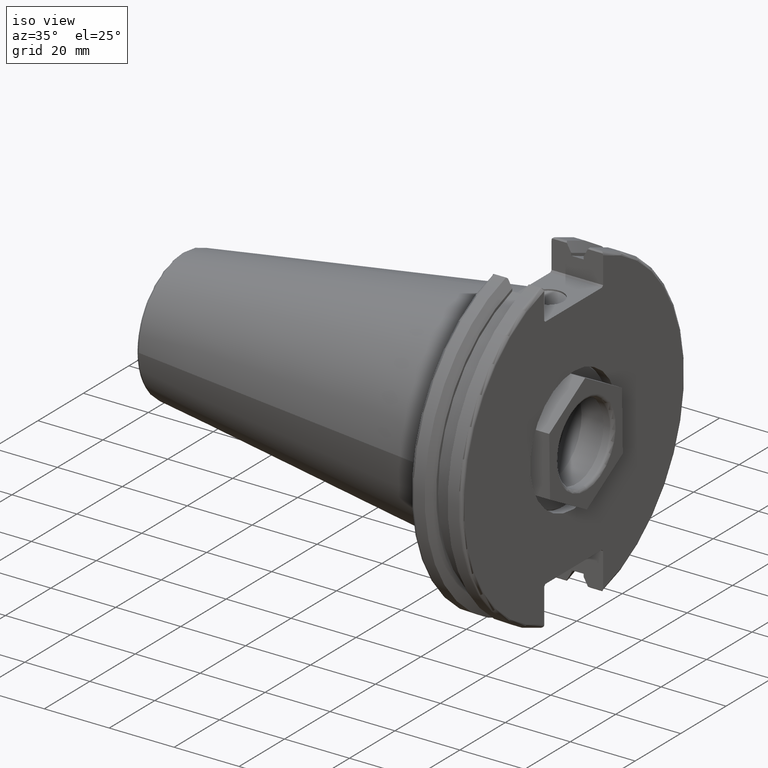
[diagram: clean part render]
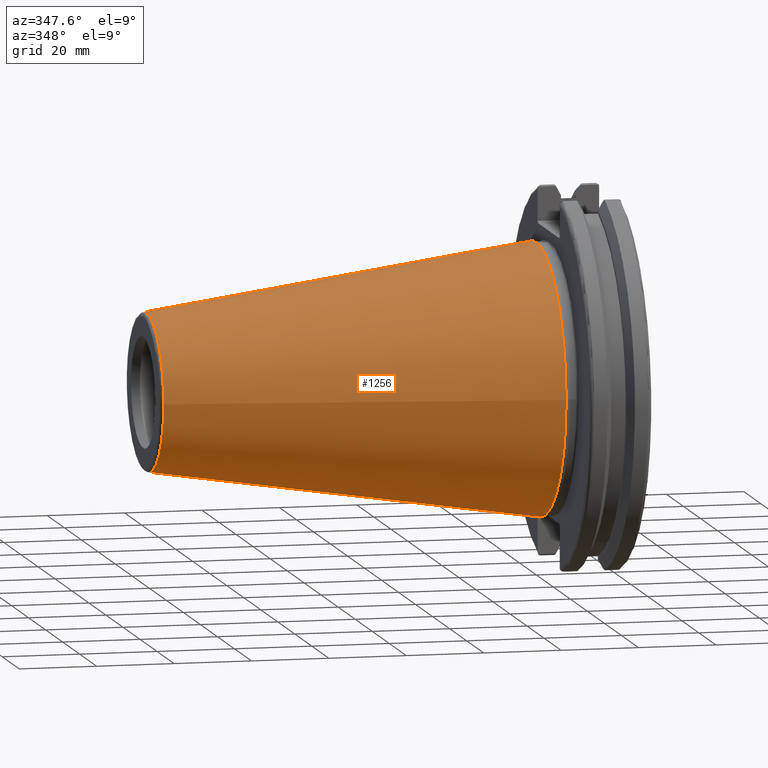
[diagram: tour spotlight — one face highlighted and labeled with its STEP entity id]
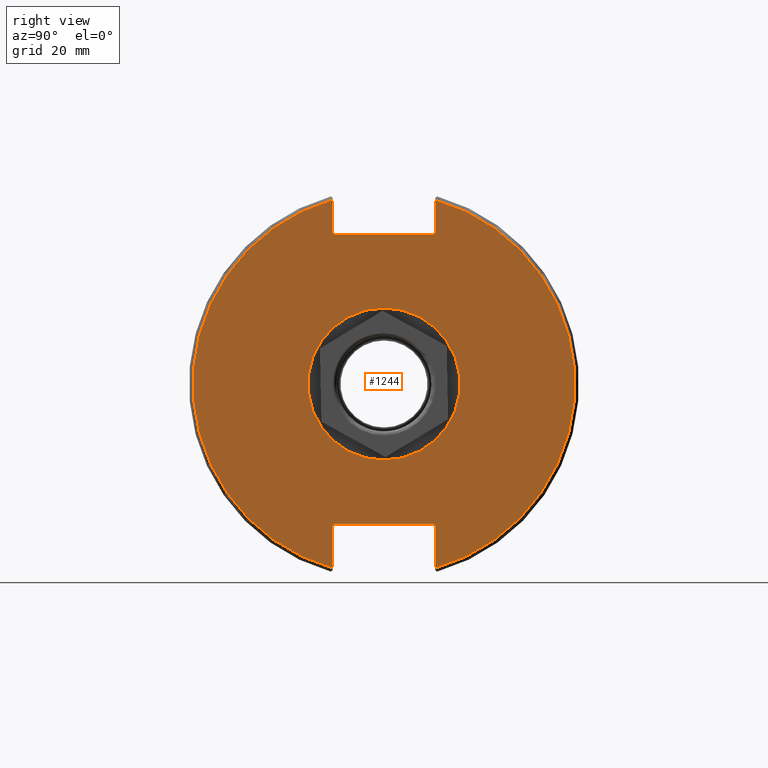
[diagram: tour spotlight — one face highlighted and labeled with its STEP entity id]
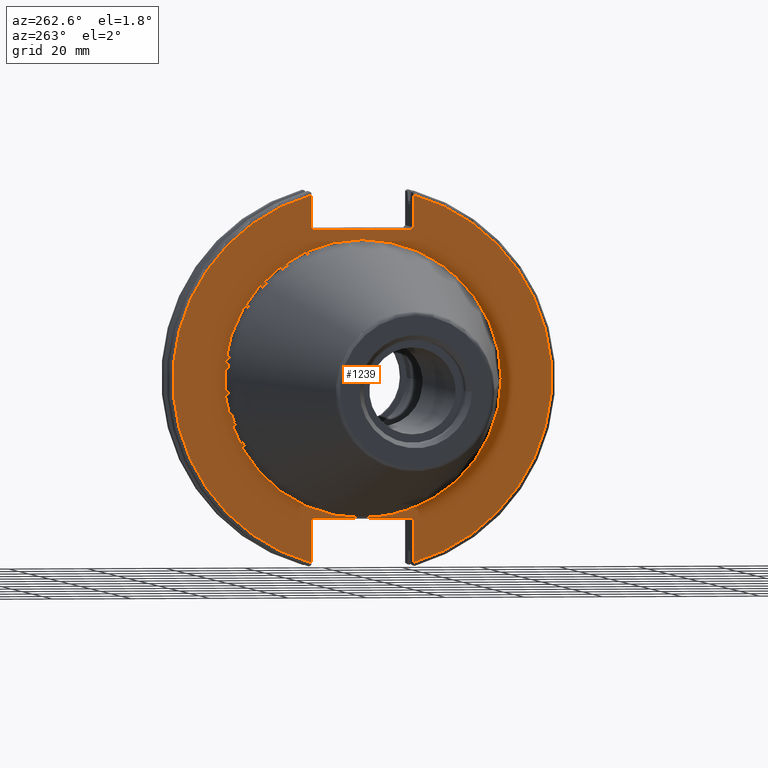
[diagram: tour spotlight — one face highlighted and labeled with its STEP entity id]
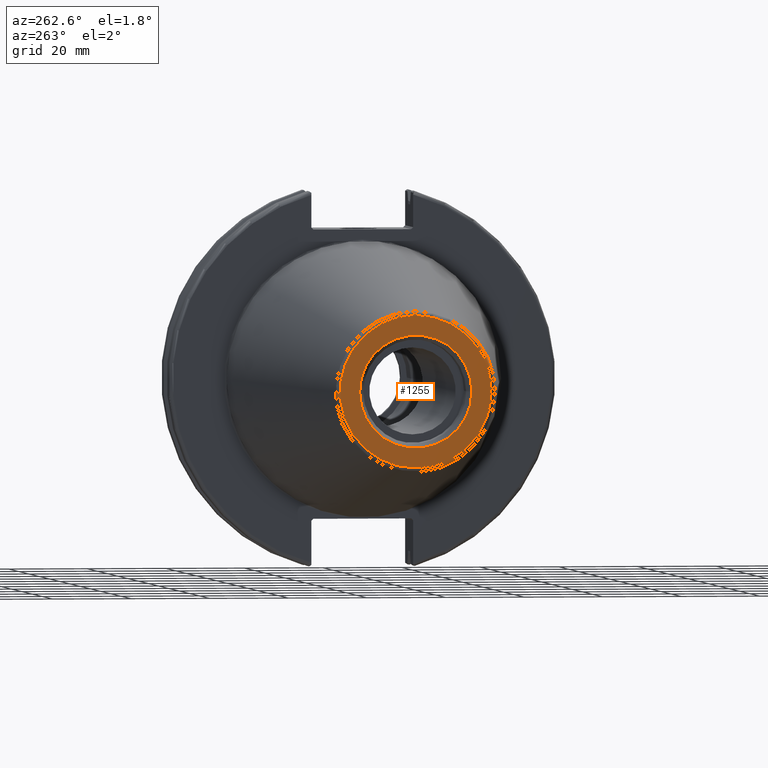
[diagram: tour spotlight — one face highlighted and labeled with its STEP entity id]
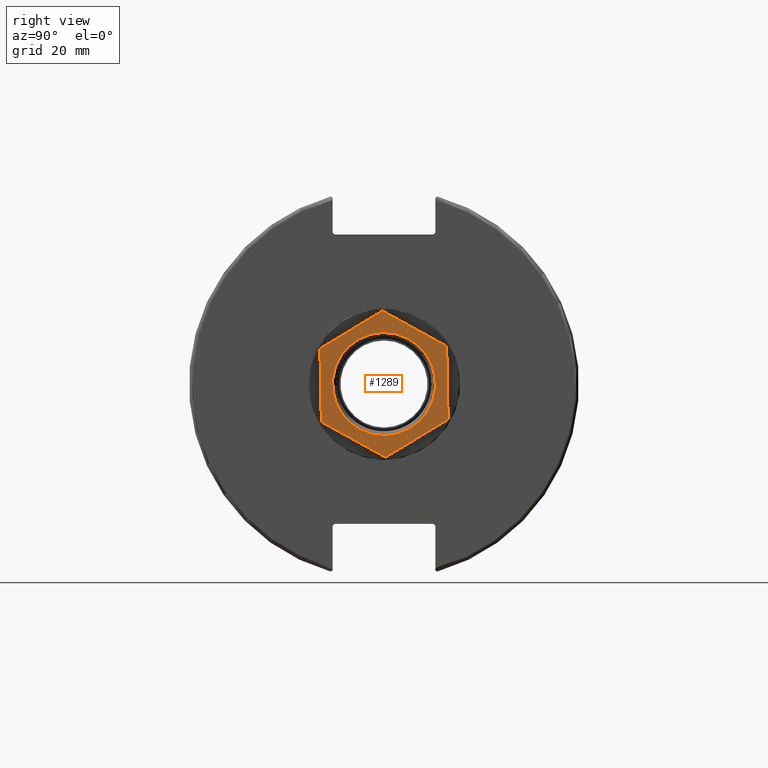
[diagram: tour spotlight — one face highlighted and labeled with its STEP entity id]
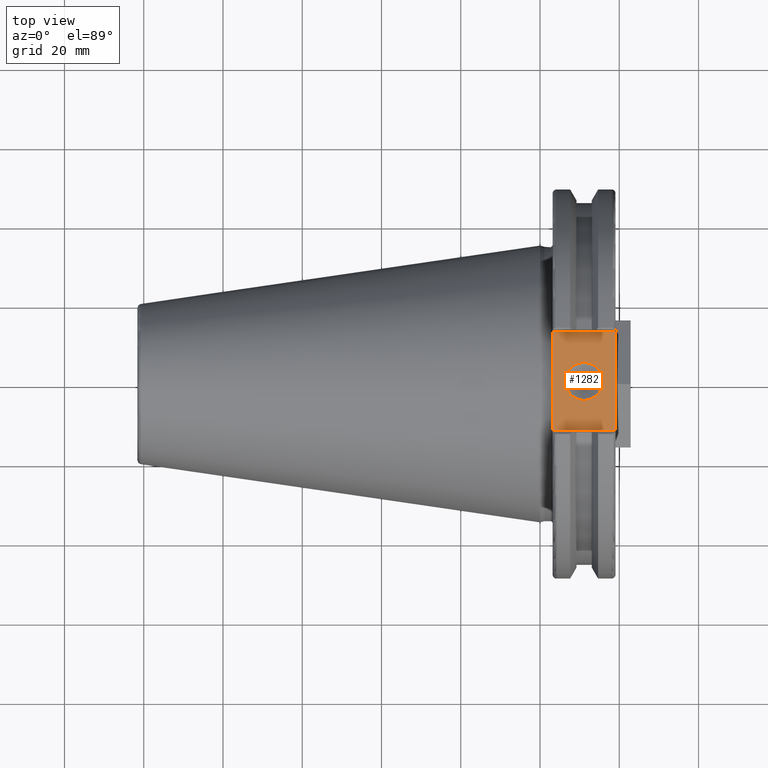
[diagram: tour spotlight — one face highlighted and labeled with its STEP entity id]
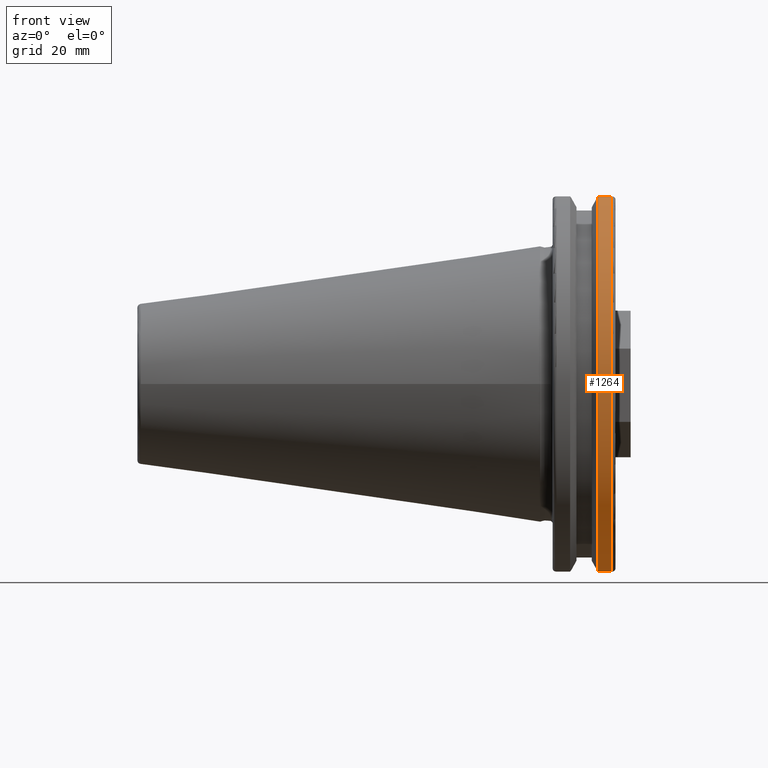
[diagram: tour spotlight — one face highlighted and labeled with its STEP entity id]
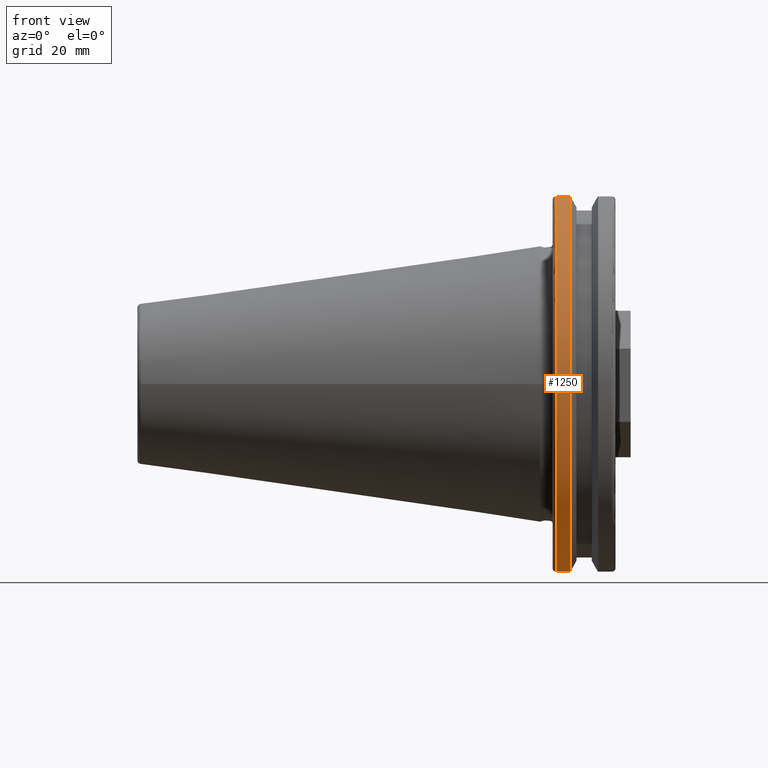
[diagram: tour spotlight — one face highlighted and labeled with its STEP entity id]
A machine part: a face-by-face anatomy tour. The part has 75 B-rep faces; the first image is the clean iso view, then the 8 largest visible faces are spotlighted one at a time (largest first), each with its STEP entity span.

Face 1 — auxiliary view, entity #1256. In plain terms, the highlighted conical surface has half-angle 8.297 deg.
Definition (entity closure, byte-faithful):
#119=CONICAL_SURFACE('',#1425,27.5166666666666,0.14481249823894);
#156=FACE_OUTER_BOUND('',#237,.T.);
#237=EDGE_LOOP('',(#993,#994,#995,#996,#997));
#340=LINE('',#2212,#432);
#432=VECTOR('',#1674,27.5166666666666);
#499=CIRCLE('',#1419,20.233121911427);
#500=CIRCLE('',#1420,20.233121911427);
#504=CIRCLE('',#1426,34.925);
#612=VERTEX_POINT('',#2199);
#613=VERTEX_POINT('',#2200);
#616=VERTEX_POINT('',#2210);
#756=EDGE_CURVE('',#612,#613,#499,.T.);
#757=EDGE_CURVE('',#613,#612,#500,.T.);
#761=EDGE_CURVE('',#616,#616,#504,.T.);
#762=EDGE_CURVE('',#616,#613,#340,.T.);
#993=ORIENTED_EDGE('',*,*,#761,.F.);
#994=ORIENTED_EDGE('',*,*,#762,.T.);
#995=ORIENTED_EDGE('',*,*,#756,.F.);
#996=ORIENTED_EDGE('',*,*,#757,.F.);
#997=ORIENTED_EDGE('',*,*,#762,.F.);
#1256=ADVANCED_FACE('',(#156),#119,.T.);
#1419=AXIS2_PLACEMENT_3D('',#2201,#1658,#1659);
#1420=AXIS2_PLACEMENT_3D('',#2202,#1660,#1661);
#1425=AXIS2_PLACEMENT_3D('',#2209,#1670,#1671);
#1426=AXIS2_PLACEMENT_3D('',#2211,#1672,#1673);
#1658=DIRECTION('center_axis',(-1.,0.,0.));
#1659=DIRECTION('ref_axis',(0.,-1.,3.06161699786838E-17));
#1660=DIRECTION('center_axis',(-1.,0.,0.));
#1661=DIRECTION('ref_axis',(0.,-1.,3.06161699786838E-17));
#1670=DIRECTION('center_axis',(1.,0.,0.));
#1671=DIRECTION('ref_axis',(0.,1.,0.));
#1672=DIRECTION('center_axis',(1.,0.,0.));
#1673=DIRECTION('ref_axis',(0.,0.,-1.));
#1674=DIRECTION('',(-0.989532981063281,0.144306893071729,1.76724974695192E-17));
#2199=CARTESIAN_POINT('',(-100.744306893072,-2.47784279855872E-15,20.233121911427));
#2200=CARTESIAN_POINT('',(-100.744306893072,-20.233121911427,-2.47784279855872E-15));
#2201=CARTESIAN_POINT('Origin',(-100.744306893072,0.,-3.09730349819841E-15));
#2202=CARTESIAN_POINT('Origin',(-100.744306893072,0.,-3.09730349819841E-15));
#2209=CARTESIAN_POINT('Origin',(-50.8,0.,0.));
#2210=CARTESIAN_POINT('',(-8.88178419700125E-15,-34.925,-4.27707894602213E-15));
#2211=CARTESIAN_POINT('Origin',(0.,0.,0.));
#2212=CARTESIAN_POINT('',(-50.8,-27.5166666666666,-3.3698197756538E-15));

Face 2 — right view, entity #1244. In plain terms, the highlighted planar face has unit normal (1, 0, 0).
Definition (entity closure, byte-faithful):
#71=FACE_BOUND('',#224,.T.);
#85=PLANE('',#1403);
#144=FACE_OUTER_BOUND('',#223,.T.);
#223=EDGE_LOOP('',(#915,#916,#917,#918,#919,#920,#921,#922,#923,#924,#925,
#926));
#224=EDGE_LOOP('',(#927));
#310=LINE('',#2001,#402);
#316=LINE('',#2027,#408);
#317=LINE('',#2029,#409);
#318=LINE('',#2031,#410);
#319=LINE('',#2033,#411);
#320=LINE('',#2035,#412);
#321=LINE('',#2039,#413);
#322=LINE('',#2041,#414);
#323=LINE('',#2043,#415);
#324=LINE('',#2044,#416);
#402=VECTOR('',#1596,10.);
#408=VECTOR('',#1604,10.);
#409=VECTOR('',#1605,10.);
#410=VECTOR('',#1606,10.);
#411=VECTOR('',#1607,10.);
#412=VECTOR('',#1608,10.);
#413=VECTOR('',#1611,10.);
#414=VECTOR('',#1612,10.);
#415=VECTOR('',#1613,10.);
#416=VECTOR('',#1614,10.);
#476=CIRCLE('',#1372,19.188);
#492=CIRCLE('',#1399,48.2125);
#494=CIRCLE('',#1404,48.2125);
#537=VERTEX_POINT('',#1887);
#563=VERTEX_POINT('',#1956);
#564=VERTEX_POINT('',#1963);
#570=VERTEX_POINT('',#2000);
#577=VERTEX_POINT('',#2026);
#578=VERTEX_POINT('',#2028);
#579=VERTEX_POINT('',#2030);
#580=VERTEX_POINT('',#2032);
#581=VERTEX_POINT('',#2034);
#582=VERTEX_POINT('',#2036);
#583=VERTEX_POINT('',#2038);
#584=VERTEX_POINT('',#2040);
#585=VERTEX_POINT('',#2042);
#659=EDGE_CURVE('',#537,#537,#476,.T.);
#692=EDGE_CURVE('',#563,#564,#492,.T.);
#700=EDGE_CURVE('',#570,#564,#310,.T.);
#709=EDGE_CURVE('',#563,#577,#316,.T.);
#710=EDGE_CURVE('',#578,#577,#317,.T.);
#711=EDGE_CURVE('',#578,#579,#318,.T.);
#712=EDGE_CURVE('',#580,#579,#319,.T.);
#713=EDGE_CURVE('',#580,#581,#320,.T.);
#714=EDGE_CURVE('',#582,#581,#494,.T.);
#715=EDGE_CURVE('',#582,#583,#321,.T.);
#716=EDGE_CURVE('',#584,#583,#322,.T.);
#717=EDGE_CURVE('',#584,#585,#323,.T.);
#718=EDGE_CURVE('',#570,#585,#324,.T.);
#915=ORIENTED_EDGE('',*,*,#692,.F.);
#916=ORIENTED_EDGE('',*,*,#709,.T.);
#917=ORIENTED_EDGE('',*,*,#710,.F.);
#918=ORIENTED_EDGE('',*,*,#711,.T.);
#919=ORIENTED_EDGE('',*,*,#712,.F.);
#920=ORIENTED_EDGE('',*,*,#713,.T.);
#921=ORIENTED_EDGE('',*,*,#714,.F.);
#922=ORIENTED_EDGE('',*,*,#715,.T.);
#923=ORIENTED_EDGE('',*,*,#716,.F.);
#924=ORIENTED_EDGE('',*,*,#717,.T.);
#925=ORIENTED_EDGE('',*,*,#718,.F.);
#926=ORIENTED_EDGE('',*,*,#700,.T.);
#927=ORIENTED_EDGE('',*,*,#659,.T.);
#1244=ADVANCED_FACE('',(#144,#71),#85,.T.);
#1372=AXIS2_PLACEMENT_3D('',#1888,#1516,#1517);
#1399=AXIS2_PLACEMENT_3D('',#1964,#1586,#1587);
#1403=AXIS2_PLACEMENT_3D('',#2025,#1602,#1603);
#1404=AXIS2_PLACEMENT_3D('',#2037,#1609,#1610);
#1516=DIRECTION('center_axis',(-1.,0.,0.));
#1517=DIRECTION('ref_axis',(0.,0.,-1.));
#1586=DIRECTION('center_axis',(-1.,0.,0.));
#1587=DIRECTION('ref_axis',(0.,1.,-6.12323399573677E-17));
#1596=DIRECTION('',(0.,0.,-1.));
#1602=DIRECTION('center_axis',(1.,0.,0.));
#1603=DIRECTION('ref_axis',(0.,0.,-1.));
#1604=DIRECTION('',(0.,0.,-1.));
#1605=DIRECTION('',(0.,0.707106781186549,0.707106781186546));
#1606=DIRECTION('',(0.,-1.,0.));
#1607=DIRECTION('',(0.,0.707106781186549,-0.707106781186546));
#1608=DIRECTION('',(0.,0.,1.));
#1609=DIRECTION('center_axis',(-1.,0.,0.));
#1610=DIRECTION('ref_axis',(0.,-1.,1.60812264967664E-16));
#1611=DIRECTION('',(0.,0.,1.));
#1612=DIRECTION('',(0.,-0.707106781186549,-0.707106781186546));
#1613=DIRECTION('',(0.,1.,0.));
#1614=DIRECTION('',(0.,-0.707106781186549,0.707106781186546));
#1887=CARTESIAN_POINT('',(19.05,-2.34985227820394E-15,19.188));
#1888=CARTESIAN_POINT('Origin',(19.05,0.,0.));
#1956=CARTESIAN_POINT('',(19.05,12.95,46.4407434937254));
#1963=CARTESIAN_POINT('',(19.05,12.95,-46.4407434937254));
#1964=CARTESIAN_POINT('Origin',(19.05,0.,0.));
#2000=CARTESIAN_POINT('',(19.05,12.95,-35.806));
#2001=CARTESIAN_POINT('',(19.05,12.95,-17.653));
#2025=CARTESIAN_POINT('Origin',(19.05,0.,0.));
#2026=CARTESIAN_POINT('',(19.05,12.95,38.219));
#2027=CARTESIAN_POINT('',(19.05,12.95,18.8595));
#2028=CARTESIAN_POINT('',(19.05,12.45,37.719));
#2029=CARTESIAN_POINT('',(19.05,0.0327499999999836,25.30175));
#2030=CARTESIAN_POINT('',(19.05,-12.45,37.719));
#2031=CARTESIAN_POINT('',(19.05,0.,37.719));
#2032=CARTESIAN_POINT('',(19.05,-12.95,38.219));
#2033=CARTESIAN_POINT('',(19.05,-0.0327499999999817,25.30175));
#2034=CARTESIAN_POINT('',(19.05,-12.95,46.4407434937254));
#2035=CARTESIAN_POINT('',(19.05,-12.95,18.8595));
#2036=CARTESIAN_POINT('',(19.05,-12.95,-46.4407434937254));
#2037=CARTESIAN_POINT('Origin',(19.05,0.,0.));
#2038=CARTESIAN_POINT('',(19.05,-12.95,-35.806));
#2039=CARTESIAN_POINT('',(19.05,-12.95,-17.653));
#2040=CARTESIAN_POINT('',(19.05,-12.45,-35.306));
#2041=CARTESIAN_POINT('',(19.05,-0.635999999999989,-23.492));
#2042=CARTESIAN_POINT('',(19.05,12.45,-35.306));
#2043=CARTESIAN_POINT('',(19.05,-3.33066907387547E-15,-35.306));
#2044=CARTESIAN_POINT('',(19.05,0.635999999999982,-23.492));

Face 3 — auxiliary view, entity #1239. In plain terms, the highlighted planar face has unit normal (-1, 0, 0).
Definition (entity closure, byte-faithful):
#70=FACE_BOUND('',#218,.T.);
#82=PLANE('',#1393);
#139=FACE_OUTER_BOUND('',#217,.T.);
#217=EDGE_LOOP('',(#875,#876,#877,#878,#879,#880,#881,#882,#883,#884,#885,
#886));
#218=EDGE_LOOP('',(#887));
#297=LINE('',#1930,#389);
#298=LINE('',#1932,#390);
#299=LINE('',#1934,#391);
#300=LINE('',#1936,#392);
#301=LINE('',#1938,#393);
#302=LINE('',#1942,#394);
#303=LINE('',#1944,#395);
#304=LINE('',#1946,#396);
#305=LINE('',#1948,#397);
#306=LINE('',#1949,#398);
#389=VECTOR('',#1567,10.);
#390=VECTOR('',#1568,10.);
#391=VECTOR('',#1569,10.);
#392=VECTOR('',#1570,10.);
#393=VECTOR('',#1571,10.);
#394=VECTOR('',#1574,10.);
#395=VECTOR('',#1575,10.);
#396=VECTOR('',#1576,10.);
#397=VECTOR('',#1577,10.);
#398=VECTOR('',#1578,10.);
#487=CIRCLE('',#1391,35.125);
#489=CIRCLE('',#1394,48.2125);
#490=CIRCLE('',#1395,48.2125);
#548=VERTEX_POINT('',#1921);
#549=VERTEX_POINT('',#1926);
#550=VERTEX_POINT('',#1927);
#551=VERTEX_POINT('',#1929);
#552=VERTEX_POINT('',#1931);
#553=VERTEX_POINT('',#1933);
#554=VERTEX_POINT('',#1935);
#555=VERTEX_POINT('',#1937);
#556=VERTEX_POINT('',#1939);
#557=VERTEX_POINT('',#1941);
#558=VERTEX_POINT('',#1943);
#559=VERTEX_POINT('',#1945);
#560=VERTEX_POINT('',#1947);
#675=EDGE_CURVE('',#548,#548,#487,.T.);
#677=EDGE_CURVE('',#549,#550,#489,.T.);
#678=EDGE_CURVE('',#549,#551,#297,.T.);
#679=EDGE_CURVE('',#552,#551,#298,.T.);
#680=EDGE_CURVE('',#552,#553,#299,.T.);
#681=EDGE_CURVE('',#554,#553,#300,.T.);
#682=EDGE_CURVE('',#554,#555,#301,.T.);
#683=EDGE_CURVE('',#556,#555,#490,.T.);
#684=EDGE_CURVE('',#556,#557,#302,.T.);
#685=EDGE_CURVE('',#558,#557,#303,.T.);
#686=EDGE_CURVE('',#558,#559,#304,.T.);
#687=EDGE_CURVE('',#560,#559,#305,.T.);
#688=EDGE_CURVE('',#560,#550,#306,.T.);
#875=ORIENTED_EDGE('',*,*,#677,.F.);
#876=ORIENTED_EDGE('',*,*,#678,.T.);
#877=ORIENTED_EDGE('',*,*,#679,.F.);
#878=ORIENTED_EDGE('',*,*,#680,.T.);
#879=ORIENTED_EDGE('',*,*,#681,.F.);
#880=ORIENTED_EDGE('',*,*,#682,.T.);
#881=ORIENTED_EDGE('',*,*,#683,.F.);
#882=ORIENTED_EDGE('',*,*,#684,.T.);
#883=ORIENTED_EDGE('',*,*,#685,.F.);
#884=ORIENTED_EDGE('',*,*,#686,.T.);
#885=ORIENTED_EDGE('',*,*,#687,.F.);
#886=ORIENTED_EDGE('',*,*,#688,.T.);
#887=ORIENTED_EDGE('',*,*,#675,.F.);
#1239=ADVANCED_FACE('',(#139,#70),#82,.T.);
#1391=AXIS2_PLACEMENT_3D('',#1923,#1559,#1560);
#1393=AXIS2_PLACEMENT_3D('',#1925,#1563,#1564);
#1394=AXIS2_PLACEMENT_3D('',#1928,#1565,#1566);
#1395=AXIS2_PLACEMENT_3D('',#1940,#1572,#1573);
#1559=DIRECTION('center_axis',(-1.,0.,0.));
#1560=DIRECTION('ref_axis',(0.,-1.,1.83697019872103E-16));
#1563=DIRECTION('center_axis',(-1.,0.,0.));
#1564=DIRECTION('ref_axis',(0.,0.,1.));
#1565=DIRECTION('center_axis',(1.,0.,0.));
#1566=DIRECTION('ref_axis',(0.,-1.,1.60812264967664E-16));
#1567=DIRECTION('',(0.,0.,-1.));
#1568=DIRECTION('',(0.,-0.707106781186549,0.707106781186546));
#1569=DIRECTION('',(0.,1.,0.));
#1570=DIRECTION('',(0.,-0.707106781186549,-0.707106781186546));
#1571=DIRECTION('',(0.,0.,1.));
#1572=DIRECTION('center_axis',(1.,0.,0.));
#1573=DIRECTION('ref_axis',(0.,1.,-6.12323399573677E-17));
#1574=DIRECTION('',(0.,0.,1.));
#1575=DIRECTION('',(0.,0.707106781186549,-0.707106781186546));
#1576=DIRECTION('',(0.,-1.,0.));
#1577=DIRECTION('',(0.,0.707106781186549,0.707106781186546));
#1578=DIRECTION('',(0.,0.,-1.));
#1921=CARTESIAN_POINT('',(3.175,-4.30157188200508E-15,35.125));
#1923=CARTESIAN_POINT('Origin',(3.175,0.,0.));
#1925=CARTESIAN_POINT('Origin',(3.175,49.2125,0.));
#1926=CARTESIAN_POINT('',(3.175,-12.95,46.4407434937254));
#1927=CARTESIAN_POINT('',(3.175,-12.95,-46.4407434937254));
#1928=CARTESIAN_POINT('Origin',(3.175,0.,0.));
#1929=CARTESIAN_POINT('',(3.175,-12.95,38.219));
#1930=CARTESIAN_POINT('',(3.175,-12.95,18.8595));
#1931=CARTESIAN_POINT('',(3.175,-12.45,37.719));
#1932=CARTESIAN_POINT('',(3.175,12.2703750000001,12.998625));
#1933=CARTESIAN_POINT('',(3.175,12.45,37.719));
#1934=CARTESIAN_POINT('',(3.175,24.60625,37.719));
#1935=CARTESIAN_POINT('',(3.175,12.95,38.219));
#1936=CARTESIAN_POINT('',(3.175,12.335875,37.604875));
#1937=CARTESIAN_POINT('',(3.175,12.95,46.4407434937254));
#1938=CARTESIAN_POINT('',(3.175,12.95,18.8595));
#1939=CARTESIAN_POINT('',(3.175,12.95,-46.4407434937254));
#1940=CARTESIAN_POINT('Origin',(3.175,0.,0.));
#1941=CARTESIAN_POINT('',(3.175,12.95,-35.806));
#1942=CARTESIAN_POINT('',(3.175,12.95,-17.653));
#1943=CARTESIAN_POINT('',(3.175,12.45,-35.306));
#1944=CARTESIAN_POINT('',(3.175,12.939125,-35.795125));
#1945=CARTESIAN_POINT('',(3.175,-12.45,-35.306));
#1946=CARTESIAN_POINT('',(3.175,24.60625,-35.306));
#1947=CARTESIAN_POINT('',(3.175,-12.95,-35.806));
#1948=CARTESIAN_POINT('',(3.175,11.6671250000001,-11.188875));
#1949=CARTESIAN_POINT('',(3.175,-12.95,-17.653));

Face 4 — auxiliary view, entity #1255. In plain terms, the highlighted planar face has unit normal (-1, 0, 0).
Definition (entity closure, byte-faithful):
#72=FACE_BOUND('',#236,.T.);
#91=PLANE('',#1423);
#155=FACE_OUTER_BOUND('',#235,.T.);
#235=EDGE_LOOP('',(#991));
#236=EDGE_LOOP('',(#992));
#502=CIRCLE('',#1422,19.2435889303637);
#503=CIRCLE('',#1424,14.2875);
#614=VERTEX_POINT('',#2203);
#615=VERTEX_POINT('',#2207);
#759=EDGE_CURVE('',#614,#614,#502,.T.);
#760=EDGE_CURVE('',#615,#615,#503,.T.);
#991=ORIENTED_EDGE('',*,*,#759,.F.);
#992=ORIENTED_EDGE('',*,*,#760,.T.);
#1255=ADVANCED_FACE('',(#155,#72),#91,.T.);
#1422=AXIS2_PLACEMENT_3D('',#2205,#1664,#1665);
#1423=AXIS2_PLACEMENT_3D('',#2206,#1666,#1667);
#1424=AXIS2_PLACEMENT_3D('',#2208,#1668,#1669);
#1664=DIRECTION('center_axis',(1.,0.,0.));
#1665=DIRECTION('ref_axis',(0.,-1.,1.83697019872103E-16));
#1666=DIRECTION('center_axis',(-1.,0.,0.));
#1667=DIRECTION('ref_axis',(0.,0.,1.));
#1668=DIRECTION('center_axis',(1.,0.,0.));
#1669=DIRECTION('ref_axis',(0.,0.,-1.));
#2203=CARTESIAN_POINT('',(-101.6,-2.35665995876774E-15,19.2435889303637));
#2205=CARTESIAN_POINT('Origin',(-101.6,0.,0.));
#2206=CARTESIAN_POINT('Origin',(-101.6,20.1083333333333,0.));
#2207=CARTESIAN_POINT('',(-101.6,-14.2875,-1.74971411428178E-15));
#2208=CARTESIAN_POINT('Origin',(-101.6,0.,0.));

Face 5 — right view, entity #1289. In plain terms, the highlighted planar face has unit normal (1, 0, 0).
Definition (entity closure, byte-faithful):
#75=FACE_BOUND('',#273,.T.);
#108=PLANE('',#1480);
#189=FACE_OUTER_BOUND('',#272,.T.);
#272=EDGE_LOOP('',(#1142,#1143,#1144,#1145,#1146,#1147));
#273=EDGE_LOOP('',(#1148));
#361=LINE('',#2326,#453);
#362=LINE('',#2328,#454);
#363=LINE('',#2330,#455);
#364=LINE('',#2332,#456);
#365=LINE('',#2334,#457);
#366=LINE('',#2335,#458);
#453=VECTOR('',#1803,10.);
#454=VECTOR('',#1804,10.);
#455=VECTOR('',#1805,10.);
#456=VECTOR('',#1806,10.);
#457=VECTOR('',#1807,10.);
#458=VECTOR('',#1808,10.);
#520=CIRCLE('',#1474,13.);
#632=VERTEX_POINT('',#2312);
#636=VERTEX_POINT('',#2324);
#637=VERTEX_POINT('',#2325);
#638=VERTEX_POINT('',#2327);
#639=VERTEX_POINT('',#2329);
#640=VERTEX_POINT('',#2331);
#641=VERTEX_POINT('',#2333);
#803=EDGE_CURVE('',#632,#632,#520,.T.);
#809=EDGE_CURVE('',#636,#637,#361,.T.);
#810=EDGE_CURVE('',#637,#638,#362,.T.);
#811=EDGE_CURVE('',#638,#639,#363,.T.);
#812=EDGE_CURVE('',#639,#640,#364,.T.);
#813=EDGE_CURVE('',#640,#641,#365,.T.);
#814=EDGE_CURVE('',#641,#636,#366,.T.);
#1142=ORIENTED_EDGE('',*,*,#809,.T.);
#1143=ORIENTED_EDGE('',*,*,#810,.T.);
#1144=ORIENTED_EDGE('',*,*,#811,.T.);
#1145=ORIENTED_EDGE('',*,*,#812,.T.);
#1146=ORIENTED_EDGE('',*,*,#813,.T.);
#1147=ORIENTED_EDGE('',*,*,#814,.T.);
#1148=ORIENTED_EDGE('',*,*,#803,.F.);
#1289=ADVANCED_FACE('',(#189,#75),#108,.T.);
#1474=AXIS2_PLACEMENT_3D('',#2313,#1788,#1789);
#1480=AXIS2_PLACEMENT_3D('',#2323,#1801,#1802);
#1788=DIRECTION('center_axis',(1.,0.,0.));
#1789=DIRECTION('ref_axis',(0.,-1.,-1.22464679914735E-16));
#1801=DIRECTION('center_axis',(1.,0.,0.));
#1802=DIRECTION('ref_axis',(0.,0.,-1.));
#1803=DIRECTION('',(0.,1.20185167898973E-16,1.));
#1804=DIRECTION('',(0.,-0.866025403784439,0.5));
#1805=DIRECTION('',(0.,-0.866025403784439,-0.5));
#1806=DIRECTION('',(0.,0.,-1.));
#1807=DIRECTION('',(0.,0.866025403784439,-0.5));
#1808=DIRECTION('',(0.,0.866025403784439,0.5));
#2312=CARTESIAN_POINT('',(6.60000000000001,-1.59204083889156E-15,-13.));
#2313=CARTESIAN_POINT('Origin',(6.6,0.,0.));
#2323=CARTESIAN_POINT('Origin',(6.6,2.22044604925031E-15,-3.33066907387547E-15));
#2324=CARTESIAN_POINT('',(6.6,16.,-9.23760430703402));
#2325=CARTESIAN_POINT('',(6.6,16.,9.23760430703402));
#2326=CARTESIAN_POINT('',(6.6,16.,-9.23760430703402));
#2327=CARTESIAN_POINT('',(6.6,0.,18.475208614068));
#2328=CARTESIAN_POINT('',(6.6,16.,9.23760430703402));
#2329=CARTESIAN_POINT('',(6.6,-16.,9.23760430703401));
#2330=CARTESIAN_POINT('',(6.6,0.,18.475208614068));
#2331=CARTESIAN_POINT('',(6.6,-16.,-9.23760430703402));
#2332=CARTESIAN_POINT('',(6.6,-16.,9.23760430703401));
#2333=CARTESIAN_POINT('',(6.6,0.,-18.475208614068));
#2334=CARTESIAN_POINT('',(6.6,-16.,-9.23760430703402));
#2335=CARTESIAN_POINT('',(6.6,0.,-18.475208614068));

Face 6 — top view, entity #1282. In plain terms, the highlighted planar face has unit normal (0, 0, 1).
Definition (entity closure, byte-faithful):
#73=FACE_BOUND('',#264,.T.);
#106=PLANE('',#1465);
#182=FACE_OUTER_BOUND('',#263,.T.);
#263=EDGE_LOOP('',(#1113,#1114,#1115,#1116));
#264=EDGE_LOOP('',(#1117));
#299=LINE('',#1934,#391);
#318=LINE('',#2031,#410);
#343=LINE('',#2219,#435);
#345=LINE('',#2222,#437);
#391=VECTOR('',#1569,10.);
#410=VECTOR('',#1606,10.);
#435=VECTOR('',#1685,10.);
#437=VECTOR('',#1689,10.);
#510=CIRCLE('',#1448,4.7625);
#552=VERTEX_POINT('',#1931);
#553=VERTEX_POINT('',#1933);
#578=VERTEX_POINT('',#2028);
#579=VERTEX_POINT('',#2030);
#629=VERTEX_POINT('',#2279);
#680=EDGE_CURVE('',#552,#553,#299,.T.);
#711=EDGE_CURVE('',#578,#579,#318,.T.);
#765=EDGE_CURVE('',#579,#552,#343,.T.);
#767=EDGE_CURVE('',#553,#578,#345,.T.);
#789=EDGE_CURVE('',#629,#629,#510,.T.);
#1113=ORIENTED_EDGE('',*,*,#765,.F.);
#1114=ORIENTED_EDGE('',*,*,#711,.F.);
#1115=ORIENTED_EDGE('',*,*,#767,.F.);
#1116=ORIENTED_EDGE('',*,*,#680,.F.);
#1117=ORIENTED_EDGE('',*,*,#789,.T.);
#1282=ADVANCED_FACE('',(#182,#73),#106,.T.);
#1448=AXIS2_PLACEMENT_3D('',#2280,#1732,#1733);
#1465=AXIS2_PLACEMENT_3D('',#2298,#1767,#1768);
#1569=DIRECTION('',(0.,1.,0.));
#1606=DIRECTION('',(0.,-1.,0.));
#1685=DIRECTION('',(-1.,1.31581988103722E-16,0.));
#1689=DIRECTION('',(1.,0.,0.));
#1732=DIRECTION('center_axis',(0.,0.,-1.));
#1733=DIRECTION('ref_axis',(1.,0.,0.));
#1767=DIRECTION('center_axis',(0.,0.,1.));
#1768=DIRECTION('ref_axis',(1.,0.,0.));
#1931=CARTESIAN_POINT('',(3.175,-12.45,37.719));
#1933=CARTESIAN_POINT('',(3.175,12.45,37.719));
#1934=CARTESIAN_POINT('',(3.175,24.60625,37.719));
#2028=CARTESIAN_POINT('',(19.05,12.45,37.719));
#2030=CARTESIAN_POINT('',(19.05,-12.45,37.719));
#2031=CARTESIAN_POINT('',(19.05,0.,37.719));
#2219=CARTESIAN_POINT('',(10.63125,-12.45,37.719));
#2222=CARTESIAN_POINT('',(19.06875,12.45,37.719));
#2279=CARTESIAN_POINT('',(6.36479999999999,-5.83238038093927E-16,37.719));
#2280=CARTESIAN_POINT('Origin',(11.1273,0.,37.719));
#2298=CARTESIAN_POINT('Origin',(18.0875,0.,37.719));

Face 7 — front view, entity #1264. In plain terms, the highlighted cylindrical surface (partial cylindrical patch) has radius 49.2125 mm, axis along (1, 0, 0).
Definition (entity closure, byte-faithful):
#164=FACE_OUTER_BOUND('',#245,.T.);
#245=EDGE_LOOP('',(#1034,#1035,#1036,#1037));
#351=LINE('',#2243,#443);
#352=LINE('',#2249,#444);
#443=VECTOR('',#1699,10.);
#444=VECTOR('',#1702,10.);
#495=CIRCLE('',#1406,49.2125);
#505=CIRCLE('',#1435,49.2125);
#588=VERTEX_POINT('',#2060);
#589=VERTEX_POINT('',#2069);
#623=VERTEX_POINT('',#2242);
#624=VERTEX_POINT('',#2248);
#722=EDGE_CURVE('',#588,#589,#495,.T.);
#775=EDGE_CURVE('',#589,#623,#351,.T.);
#777=EDGE_CURVE('',#624,#588,#352,.T.);
#778=EDGE_CURVE('',#624,#623,#505,.T.);
#1034=ORIENTED_EDGE('',*,*,#722,.F.);
#1035=ORIENTED_EDGE('',*,*,#777,.F.);
#1036=ORIENTED_EDGE('',*,*,#778,.T.);
#1037=ORIENTED_EDGE('',*,*,#775,.F.);
#1220=CYLINDRICAL_SURFACE('',#1434,49.2125);
#1264=ADVANCED_FACE('',(#164),#1220,.T.);
#1406=AXIS2_PLACEMENT_3D('',#2070,#1617,#1618);
#1434=AXIS2_PLACEMENT_3D('',#2247,#1700,#1701);
#1435=AXIS2_PLACEMENT_3D('',#2250,#1703,#1704);
#1617=DIRECTION('center_axis',(1.,0.,0.));
#1618=DIRECTION('ref_axis',(0.,-1.,1.60812264967664E-16));
#1699=DIRECTION('',(-1.,0.,0.));
#1700=DIRECTION('center_axis',(1.,0.,0.));
#1701=DIRECTION('ref_axis',(0.,-1.,1.22464679914735E-16));
#1702=DIRECTION('',(1.,0.,0.));
#1703=DIRECTION('center_axis',(1.,0.,0.));
#1704=DIRECTION('ref_axis',(0.,0.,-1.));
#2060=CARTESIAN_POINT('',(18.05,-13.4317035994433,47.3440544806494));
#2069=CARTESIAN_POINT('',(18.05,-13.4317035994433,-47.3440544806494));
#2070=CARTESIAN_POINT('Origin',(18.05,0.,0.));
#2242=CARTESIAN_POINT('',(14.6534090340487,-13.4317035994433,-47.3440544806494));
#2243=CARTESIAN_POINT('',(16.8517045170244,-13.4317035994433,-47.3440544806494));
#2247=CARTESIAN_POINT('Origin',(16.8517045170244,0.,0.));
#2248=CARTESIAN_POINT('',(14.6534090340487,-13.4317035994433,47.3440544806494));
#2249=CARTESIAN_POINT('',(16.8517045170244,-13.4317035994433,47.3440544806494));
#2250=CARTESIAN_POINT('Origin',(14.6534090340487,0.,0.));

Face 8 — front view, entity #1250. In plain terms, the highlighted cylindrical surface (partial cylindrical patch) has radius 49.2125 mm, axis along (1, 0, 0).
Definition (entity closure, byte-faithful):
#150=FACE_OUTER_BOUND('',#230,.T.);
#230=EDGE_LOOP('',(#968,#969,#970,#971));
#337=LINE('',#2153,#429);
#338=LINE('',#2159,#430);
#429=VECTOR('',#1641,10.);
#430=VECTOR('',#1644,10.);
#496=CIRCLE('',#1410,49.2125);
#497=CIRCLE('',#1413,49.2125);
#604=VERTEX_POINT('',#2132);
#605=VERTEX_POINT('',#2141);
#606=VERTEX_POINT('',#2152);
#607=VERTEX_POINT('',#2158);
#743=EDGE_CURVE('',#604,#605,#496,.T.);
#745=EDGE_CURVE('',#605,#606,#337,.T.);
#747=EDGE_CURVE('',#607,#604,#338,.T.);
#748=EDGE_CURVE('',#606,#607,#497,.T.);
#968=ORIENTED_EDGE('',*,*,#743,.F.);
#969=ORIENTED_EDGE('',*,*,#747,.F.);
#970=ORIENTED_EDGE('',*,*,#748,.F.);
#971=ORIENTED_EDGE('',*,*,#745,.F.);
#1219=CYLINDRICAL_SURFACE('',#1412,49.2125);
#1250=ADVANCED_FACE('',(#150),#1219,.T.);
#1410=AXIS2_PLACEMENT_3D('',#2142,#1637,#1638);
#1412=AXIS2_PLACEMENT_3D('',#2157,#1642,#1643);
#1413=AXIS2_PLACEMENT_3D('',#2160,#1645,#1646);
#1637=DIRECTION('center_axis',(-1.,0.,0.));
#1638=DIRECTION('ref_axis',(0.,-1.,1.60812264967664E-16));
#1641=DIRECTION('',(1.,0.,0.));
#1642=DIRECTION('center_axis',(1.,0.,0.));
#1643=DIRECTION('ref_axis',(0.,-1.,1.22464679914735E-16));
#1644=DIRECTION('',(-1.,0.,0.));
#1645=DIRECTION('center_axis',(1.,0.,0.));
#1646=DIRECTION('ref_axis',(0.,0.,-1.));
#2132=CARTESIAN_POINT('',(4.175,-13.4317035994433,-47.3440544806494));
#2141=CARTESIAN_POINT('',(4.175,-13.4317035994433,47.3440544806494));
#2142=CARTESIAN_POINT('Origin',(4.175,0.,0.));
#2152=CARTESIAN_POINT('',(7.60119096595128,-13.4317035994433,47.3440544806494));
#2153=CARTESIAN_POINT('',(5.38809548297564,-13.4317035994433,47.3440544806494));
#2157=CARTESIAN_POINT('Origin',(5.38809548297564,0.,0.));
#2158=CARTESIAN_POINT('',(7.60119096595128,-13.4317035994433,-47.3440544806494));
#2159=CARTESIAN_POINT('',(5.38809548297564,-13.4317035994433,-47.3440544806494));
#2160=CARTESIAN_POINT('Origin',(7.60119096595128,0.,0.));